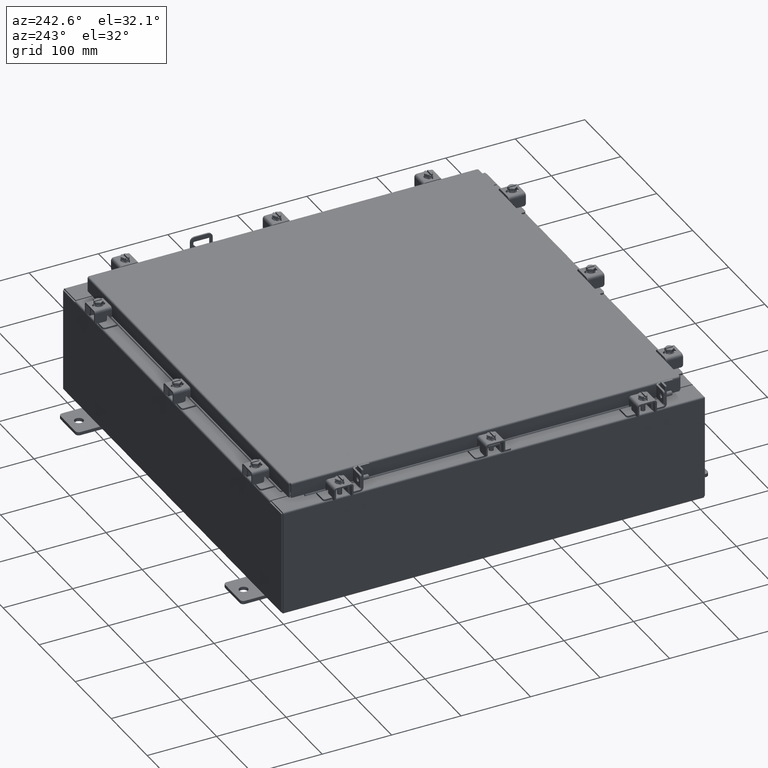
[diagram: clean part render]
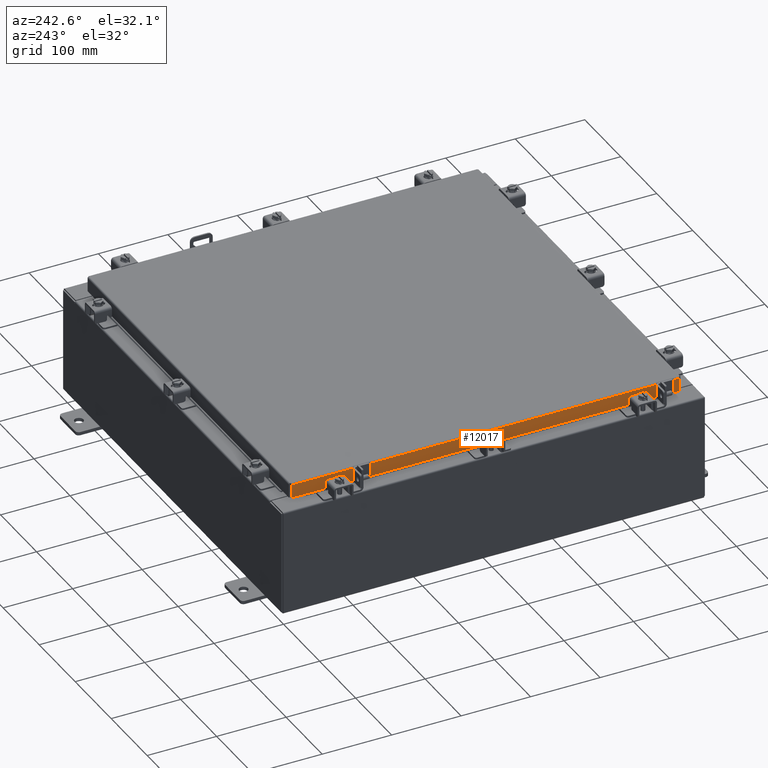
[diagram: same view with one face highlighted and labeled with its STEP entity id]
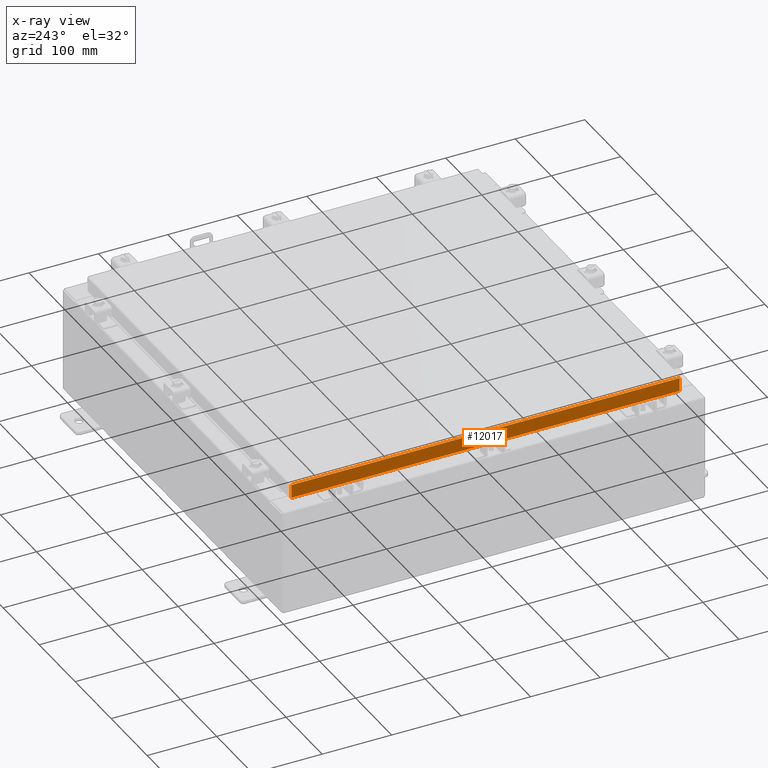
[diagram: x-ray of the same camera — body ghosted, the highlighted face saturated]
A machine part, auxiliary view. The second image highlights one B-rep face of the part: STEP entity #12017.
The next image is the same camera in x-ray: the body ghosted, the highlighted face saturated — about 0% of this face is hidden behind the body in this view.
In plain terms, the highlighted planar face has unit normal (1, 0, -0).
Its self-contained STEP definition (entity closure, byte-faithful):
#247 = LINE ( 'NONE', #4980, #18776 ) ;
#603 = CARTESIAN_POINT ( 'NONE',  ( -11.09400000000000700, -11.09400000000000100, -0.8499999999999999800 ) ) ;
#688 = EDGE_CURVE ( 'NONE', #17635, #11078, #6686, .T. ) ;
#1042 = VECTOR ( 'NONE', #16875, 39.37007874015748100 ) ;
#2653 = EDGE_CURVE ( 'NONE', #20547, #14660, #2810, .T. ) ;
#2810 = LINE ( 'NONE', #8467, #21364 ) ;
#3881 = PLANE ( 'NONE',  #8684 ) ;
#4980 = CARTESIAN_POINT ( 'NONE',  ( -11.09400000000000300, -11.00515786437626900, -0.07470000000000015500 ) ) ;
#5236 = FACE_OUTER_BOUND ( 'NONE', #20375, .T. ) ;
#5484 = CARTESIAN_POINT ( 'NONE',  ( -11.09400000000000300, -11.09400000000000100, -0.08770000000000026400 ) ) ;
#5659 = LINE ( 'NONE', #18540, #1042 ) ;
#6158 = ORIENTED_EDGE ( 'NONE', *, *, #20455, .T. ) ;
#6686 = LINE ( 'NONE', #603, #15416 ) ;
#6719 = DIRECTION ( 'NONE',  ( -2.818880942772360100E-015, 6.982962677686267500E-015, -1.000000000000000000 ) ) ;
#6859 = EDGE_CURVE ( 'NONE', #11078, #20547, #9134, .T. ) ;
#7319 = CARTESIAN_POINT ( 'NONE',  ( -11.09400000000000300, 0.0000000000000000000, 3.168943672650545400E-014 ) ) ;
#7392 = DIRECTION ( 'NONE',  ( 1.000000000000000000, 3.297150052053607500E-031, -2.818880942772360100E-015 ) ) ;
#8467 = CARTESIAN_POINT ( 'NONE',  ( -11.09400000000000700, -11.09400000000000100, -0.8499999999999999800 ) ) ;
#8544 = CARTESIAN_POINT ( 'NONE',  ( -11.09400000000000300, 11.00515786437626400, -0.08770000000000026400 ) ) ;
#8593 = VECTOR ( 'NONE', #17357, 39.37007874015748100 ) ;
#8684 = AXIS2_PLACEMENT_3D ( 'NONE', #7319, #7392, #19599 ) ;
#8780 = VERTEX_POINT ( 'NONE', #8544 ) ;
#9134 = LINE ( 'NONE', #10425, #8593 ) ;
#9355 = DIRECTION ( 'NONE',  ( 4.379057701015054300E-047, 1.000000000000000000, 1.169666303398706800E-016 ) ) ;
#10033 = LINE ( 'NONE', #5484, #18212 ) ;
#10425 = CARTESIAN_POINT ( 'NONE',  ( -11.09399999999999800, -10.25515786437626000, -0.8500000000000020900 ) ) ;
#11078 = VERTEX_POINT ( 'NONE', #13156 ) ;
#12017 = ADVANCED_FACE ( 'NONE', ( #5236 ), #3881, .F. ) ;
#12734 = ORIENTED_EDGE ( 'NONE', *, *, #2653, .F. ) ;
#13156 = CARTESIAN_POINT ( 'NONE',  ( -11.09399999999999800, -10.25515786437626400, -0.8500000000000020900 ) ) ;
#14355 = EDGE_CURVE ( 'NONE', #19631, #17635, #247, .T. ) ;
#14458 = ORIENTED_EDGE ( 'NONE', *, *, #6859, .F. ) ;
#14574 = CARTESIAN_POINT ( 'NONE',  ( -11.09400000000000700, 11.00515786437626900, -0.8499999999999966500 ) ) ;
#14660 = VERTEX_POINT ( 'NONE', #14574 ) ;
#15416 = VECTOR ( 'NONE', #9355, 39.37007874015748100 ) ;
#15605 = ORIENTED_EDGE ( 'NONE', *, *, #688, .F. ) ;
#15920 = DIRECTION ( 'NONE',  ( 3.297150052053608400E-031, -1.000000000000000000, -8.987264781119276500E-046 ) ) ;
#16153 = CARTESIAN_POINT ( 'NONE',  ( -11.09400000000000700, -11.00515786437626400, -0.8499999999999999800 ) ) ;
#16875 = DIRECTION ( 'NONE',  ( -2.818880942772360100E-015, 6.982962677686267500E-015, -1.000000000000000000 ) ) ;
#17079 = CARTESIAN_POINT ( 'NONE',  ( -11.09399999999999800, 10.25515786437626000, -0.8500000000000020900 ) ) ;
#17088 = ORIENTED_EDGE ( 'NONE', *, *, #14355, .F. ) ;
#17357 = DIRECTION ( 'NONE',  ( -0.0000000000000000000, 1.000000000000000000, -0.0000000000000000000 ) ) ;
#17549 = EDGE_CURVE ( 'NONE', #8780, #19631, #10033, .T. ) ;
#17635 = VERTEX_POINT ( 'NONE', #16153 ) ;
#17814 = CARTESIAN_POINT ( 'NONE',  ( -11.09400000000000300, -11.00515786437626900, -0.08770000000000026400 ) ) ;
#18212 = VECTOR ( 'NONE', #15920, 39.37007874015748100 ) ;
#18540 = CARTESIAN_POINT ( 'NONE',  ( -11.09400000000000300, 11.00515786437626400, 1.081811805491048200E-013 ) ) ;
#18776 = VECTOR ( 'NONE', #6719, 39.37007874015748100 ) ;
#19599 = DIRECTION ( 'NONE',  ( -2.818880942772360100E-015, 0.0000000000000000000, -1.000000000000000000 ) ) ;
#19631 = VERTEX_POINT ( 'NONE', #17814 ) ;
#19941 = ORIENTED_EDGE ( 'NONE', *, *, #17549, .F. ) ;
#20375 = EDGE_LOOP ( 'NONE', ( #19941, #6158, #12734, #14458, #15605, #17088 ) ) ;
#20455 = EDGE_CURVE ( 'NONE', #8780, #14660, #5659, .T. ) ;
#20547 = VERTEX_POINT ( 'NONE', #17079 ) ;
#20648 = DIRECTION ( 'NONE',  ( 4.379057701015054300E-047, 1.000000000000000000, 1.169666303398706800E-016 ) ) ;
#21364 = VECTOR ( 'NONE', #20648, 39.37007874015748100 ) ;